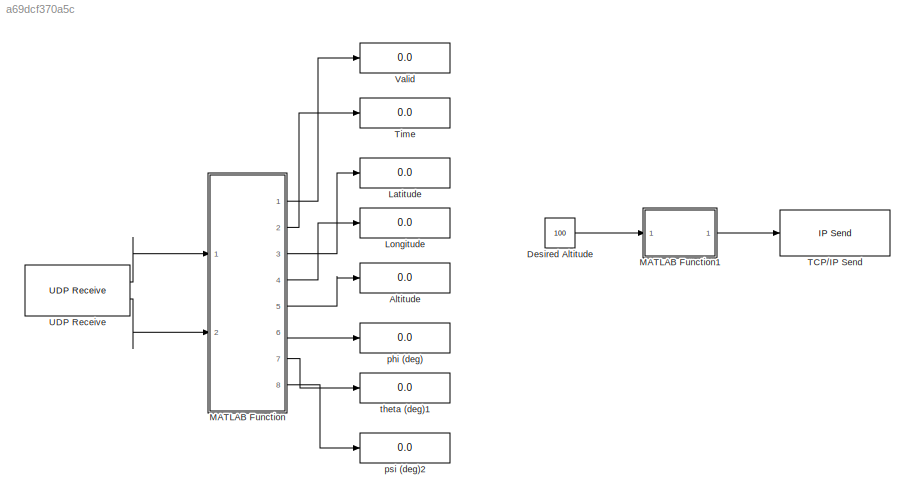
MODEL slx_a69dcf370a5c
KIND model
CONFIG AbsTol = auto
CONFIG FixedStep = 1
CONFIG MaxStep = auto
CONFIG MinStep = auto
CONFIG RelTol = 1e-3
CONFIG SampleTimeConstraint = Unconstrained
CONFIG Solver = VariableStepAuto
CONFIG SolverMode = Auto
CONFIG SolverName = VariableStepAuto
CONFIG StartTime = 0.0
CONFIG StopTime = inf
BLOCK [Display] Altitude
  Decimation = 1
  Ports = [1]
BLOCK [Constant] Desired Altitude
  Value = 100
BLOCK [Display] Latitude
  Decimation = 1
  Ports = [1]
BLOCK [Display] Longitude
  Decimation = 1
  Ports = [1]
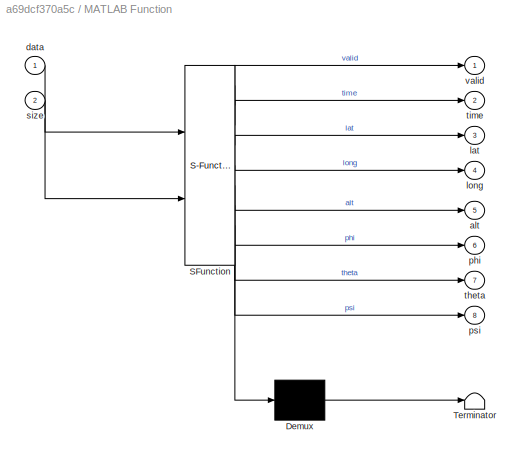
BLOCK [SubSystem] MATLAB Function
  ErrorFcn = Stateflow.Translate.translate
  PermitHierarchicalResolution = ExplicitOnly
  Ports = [2, 8]
  RequestExecContextInheritance = off
  SFBlockType = MATLAB Function
  TreatAsAtomicUnit = on
  Variant = off
BLOCK [Demux] MATLAB Function/ Demux 
  Outputs = 1
  Ports = [1, 1]
BLOCK [S-Function] MATLAB Function/ SFunction 
  EnableBusSupport = on
  FunctionName = sf_sfun
  PortCounts = [2 9]
  Ports = [2, 9]
  SFunctionDeploymentMode = off
  Tag = Stateflow S-Function jsbsim_comm 2
BLOCK [Terminator] MATLAB Function/ Terminator 
BLOCK [Outport] MATLAB Function/alt
  IconDisplay = Port number
  Port = 5
BLOCK [Inport] MATLAB Function/data
  IconDisplay = Port number
BLOCK [Outport] MATLAB Function/lat
  IconDisplay = Port number
  Port = 3
BLOCK [Outport] MATLAB Function/long
  IconDisplay = Port number
  Port = 4
BLOCK [Outport] MATLAB Function/phi
  IconDisplay = Port number
  Port = 6
BLOCK [Outport] MATLAB Function/psi
  IconDisplay = Port number
  Port = 8
BLOCK [Inport] MATLAB Function/size
  IconDisplay = Port number
  Port = 2
BLOCK [Outport] MATLAB Function/theta
  IconDisplay = Port number
  Port = 7
BLOCK [Outport] MATLAB Function/time
  IconDisplay = Port number
  Port = 2
BLOCK [Outport] MATLAB Function/valid
  IconDisplay = Port number
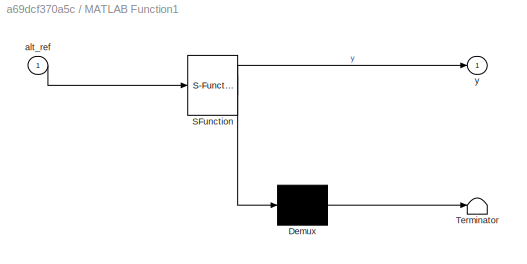
BLOCK [SubSystem] MATLAB Function1
  ErrorFcn = Stateflow.Translate.translate
  PermitHierarchicalResolution = ExplicitOnly
  Ports = [1, 1]
  RequestExecContextInheritance = off
  SFBlockType = MATLAB Function
  TreatAsAtomicUnit = on
  Variant = off
BLOCK [Demux] MATLAB Function1/ Demux 
  Outputs = 1
  Ports = [1, 1]
BLOCK [S-Function] MATLAB Function1/ SFunction 
  EnableBusSupport = on
  FunctionName = sf_sfun
  PortCounts = [1 2]
  Ports = [1, 2]
  SFunctionDeploymentMode = off
  Tag = Stateflow S-Function jsbsim_comm 1
BLOCK [Terminator] MATLAB Function1/ Terminator 
BLOCK [Inport] MATLAB Function1/alt_ref
  IconDisplay = Port number
BLOCK [Outport] MATLAB Function1/y
  IconDisplay = Port number
BLOCK [Reference] TCP//IP Send  REF=instrumentlib/TCP//IP Send
  Ports = [1]
  SourceBlock = instrumentlib/TCP//IP Send
  SourceType = TCP/IP Send
BLOCK [Display] Time
  Decimation = 1
  Format = long
  Ports = [1]
BLOCK [Reference] UDP Receive  REF=dspnetwork/UDP Receive
  Ports = [0, 2]
  SourceBlock = dspnetwork/UDP Receive
  SourceType = UDP Receive
BLOCK [Display] Valid
  Decimation = 1
  Ports = [1]
BLOCK [Display] phi (deg)
  Decimation = 1
  Ports = [1]
BLOCK [Display] psi (deg)2
  Decimation = 1
  Ports = [1]
BLOCK [Display] theta (deg)1
  Decimation = 1
  Ports = [1]
LINE Desired Altitude:1 -> MATLAB Function1:1
LINE MATLAB Function1:1 -> TCP//IP Send:1
LINE MATLAB Function:1 -> Valid:1
LINE MATLAB Function:2 -> Time:1
LINE MATLAB Function:3 -> Latitude:1
LINE MATLAB Function:4 -> Longitude:1
LINE MATLAB Function:5 -> Altitude:1
LINE MATLAB Function:6 -> phi (deg):1
LINE MATLAB Function:7 -> theta (deg)1:1
LINE MATLAB Function:8 -> psi (deg)2:1
LINE UDP Receive:1 -> MATLAB Function:1
LINE UDP Receive:2 -> MATLAB Function:2
CHART MATLAB Function1 states=1 transitions=1
  STATE_LABEL 'eML_blk_kernel()'
  STATE_LABEL "SCRIPT:\nfunction y = fcn(alt_ref)\n%#codegen\n\nalt_ref_cmd = 'set ap/altitude_setpoint ';\ncmd_buf_size = length(alt_ref_cmd);\n\nalt_ref_buf = zeros(1,64);\nalt_ref_buf(1:length(alt_ref_cmd)) = alt_ref_cmd;\n\nalt_ref_str = zeros(1,32);\ncoder.varsize('alt_ref_str');%, [1,32]);\ncoder.extrinsic('num2str'); \nalt_ref_str = num2str(alt_ref);\n\nalt_ref_buf(length(alt_ref_cmd)+1:length(alt_ref_cmd)+length(alt_re...<+465ch>"
CHART MATLAB Function states=1 transitions=1
  STATE_LABEL 'eML_blk_kernel()'
  STATE_LABEL "SCRIPT:\nfunction [valid, time, lat, long, alt, phi, theta, psi]  = fcn(data,size)\n\nvalid = 0;\ntime = -1;\nlat = -1;\nlong = -1;\nphi = -1;\ntheta = -1;\npsi = -1;\nalt = -1;\n\n%length(data)\n% For debugging the received UDP message\n%coder.extrinsic('cellstr'); \n%line = strtrim(strjoin(cellstr(char(data'))))\n\n% Remove non-printable characters and spaces (32)\nbuffer = zeros(1,length(data));\n\ni = 1; \nvalid_c...<+1039ch>"
